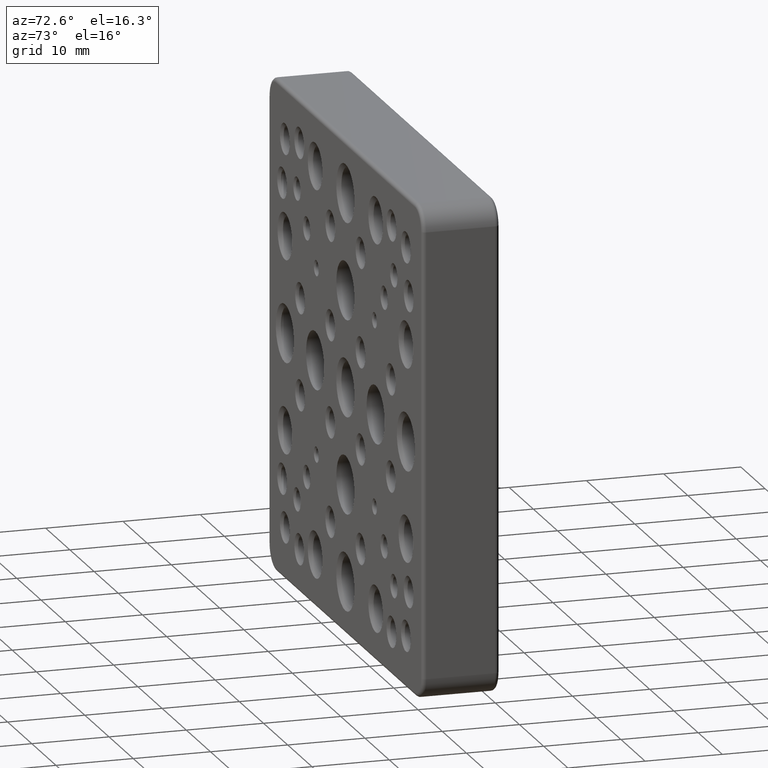
[diagram: clean part render]
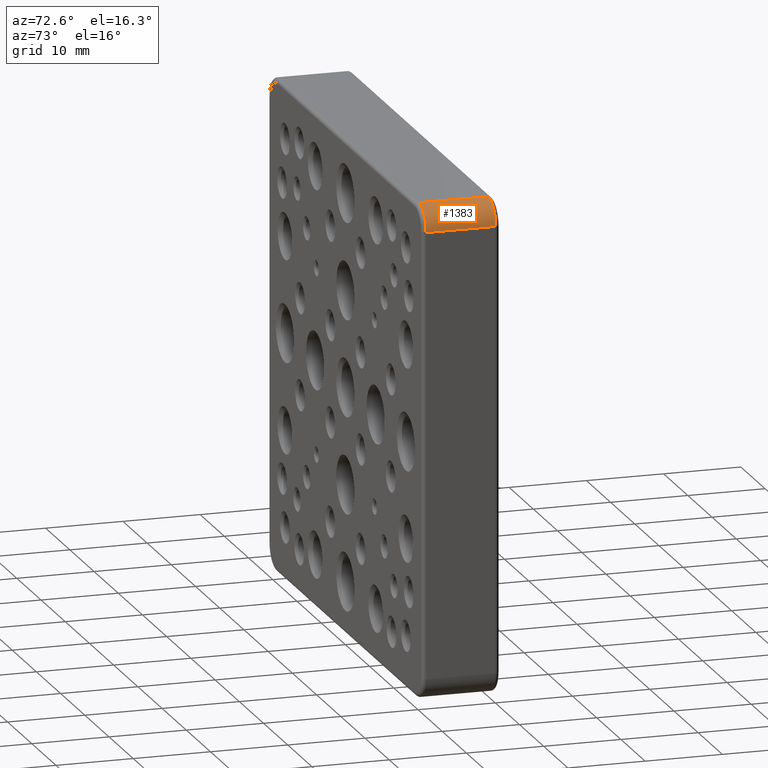
[diagram: same view with one face highlighted and labeled with its STEP entity id]
A machine part, auxiliary view. The second image highlights one B-rep face of the part: STEP entity #1383.
In plain terms, the highlighted cylindrical surface (edge-blend (fillet) strip) has radius 3 mm, axis along (0, -1, 0).
Its self-contained STEP definition (entity closure, byte-faithful):
#32 = VERTEX_POINT ( 'NONE', #3047 ) ;
#47 = CARTESIAN_POINT ( 'NONE',  ( 31.75000000000001421, 0.5000000000000004441, 28.75000000000000355 ) ) ;
#108 = DIRECTION ( 'NONE',  ( -0.000000000000000000, 1.000000000000000000, -0.000000000000000000 ) ) ;
#166 = ORIENTED_EDGE ( 'NONE', *, *, #2644, .T. ) ;
#373 = CARTESIAN_POINT ( 'NONE',  ( 28.75000000000001421, 0.5000000000000004441, 28.75000000000000355 ) ) ;
#394 = DIRECTION ( 'NONE',  ( 0.000000000000000000, 1.000000000000000000, 0.000000000000000000 ) ) ;
#457 = CARTESIAN_POINT ( 'NONE',  ( 28.75000000000001066, 10.00000000000000000, 31.75000000000000000 ) ) ;
#528 = DIRECTION ( 'NONE',  ( -0.000000000000000000, -1.000000000000000000, -0.000000000000000000 ) ) ;
#927 = CIRCLE ( 'NONE', #2161, 3.000000000000002665 ) ;
#1069 = LINE ( 'NONE', #457, #2723 ) ;
#1273 = ORIENTED_EDGE ( 'NONE', *, *, #2273, .T. ) ;
#1305 = VECTOR ( 'NONE', #2431, 1000.000000000000000 ) ;
#1383 = ADVANCED_FACE ( 'NONE', ( #3544 ), #1605, .T. ) ;
#1605 = CYLINDRICAL_SURFACE ( 'NONE', #3605, 2.999999999999999112 ) ;
#1687 = CARTESIAN_POINT ( 'NONE',  ( 31.75000000000001421, 9.500000000000000000, 28.75000000000000355 ) ) ;
#1794 = DIRECTION ( 'NONE',  ( 2.312964634635740689E-15, 0.000000000000000000, 1.000000000000000000 ) ) ;
#1926 = ORIENTED_EDGE ( 'NONE', *, *, #3024, .F. ) ;
#2001 = AXIS2_PLACEMENT_3D ( 'NONE', #2103, #528, #1794 ) ;
#2008 = VERTEX_POINT ( 'NONE', #1687 ) ;
#2103 = CARTESIAN_POINT ( 'NONE',  ( 28.75000000000001421, 9.500000000000000000, 28.75000000000000355 ) ) ;
#2161 = AXIS2_PLACEMENT_3D ( 'NONE', #373, #394, #2792 ) ;
#2190 = CIRCLE ( 'NONE', #2001, 3.000000000000002665 ) ;
#2273 = EDGE_CURVE ( 'NONE', #3175, #3843, #927, .T. ) ;
#2431 = DIRECTION ( 'NONE',  ( 0.000000000000000000, -1.000000000000000000, 0.000000000000000000 ) ) ;
#2451 = CARTESIAN_POINT ( 'NONE',  ( 31.75000000000001421, 10.00000000000000000, 28.75000000000000355 ) ) ;
#2516 = EDGE_CURVE ( 'NONE', #3175, #32, #1069, .T. ) ;
#2555 = DIRECTION ( 'NONE',  ( 0.000000000000000000, -1.000000000000000000, 0.000000000000000000 ) ) ;
#2644 = EDGE_CURVE ( 'NONE', #2008, #32, #2190, .T. ) ;
#2723 = VECTOR ( 'NONE', #108, 1000.000000000000000 ) ;
#2792 = DIRECTION ( 'NONE',  ( 0.000000000000000000, 0.000000000000000000, 1.000000000000000000 ) ) ;
#2865 = CARTESIAN_POINT ( 'NONE',  ( 28.75000000000001421, 10.00000000000000000, 28.75000000000000355 ) ) ;
#3024 = EDGE_CURVE ( 'NONE', #2008, #3843, #3944, .T. ) ;
#3047 = CARTESIAN_POINT ( 'NONE',  ( 28.75000000000001066, 9.500000000000000000, 31.75000000000000000 ) ) ;
#3175 = VERTEX_POINT ( 'NONE', #4002 ) ;
#3538 = EDGE_LOOP ( 'NONE', ( #3953, #1273, #1926, #166 ) ) ;
#3544 = FACE_OUTER_BOUND ( 'NONE', #3538, .T. ) ;
#3605 = AXIS2_PLACEMENT_3D ( 'NONE', #2865, #2555, #3806 ) ;
#3806 = DIRECTION ( 'NONE',  ( 0.000000000000000000, 0.000000000000000000, -1.000000000000000000 ) ) ;
#3843 = VERTEX_POINT ( 'NONE', #47 ) ;
#3944 = LINE ( 'NONE', #2451, #1305 ) ;
#3953 = ORIENTED_EDGE ( 'NONE', *, *, #2516, .F. ) ;
#4002 = CARTESIAN_POINT ( 'NONE',  ( 28.75000000000001066, 0.5000000000000004441, 31.75000000000000000 ) ) ;